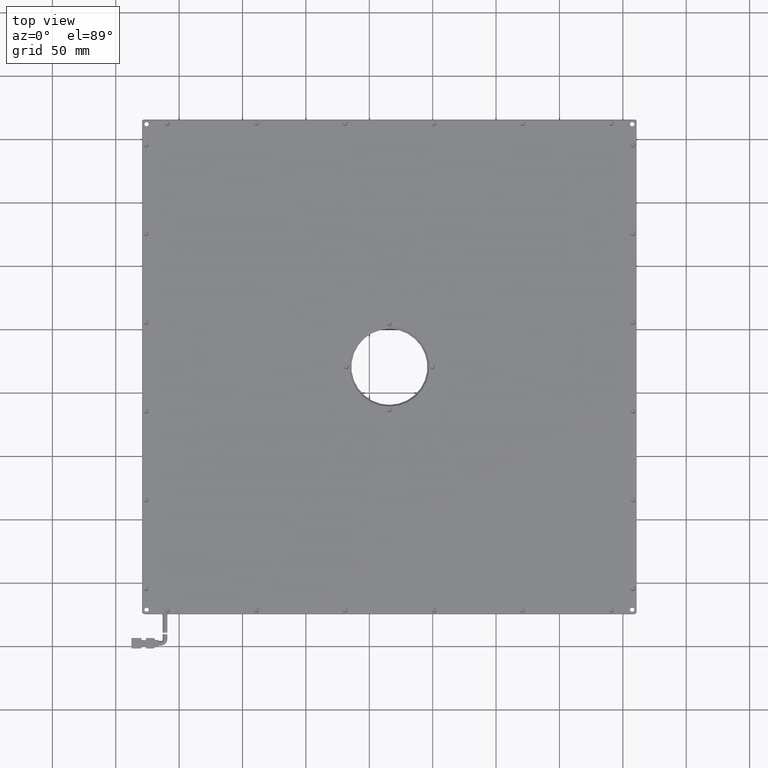
[diagram: clean part render]
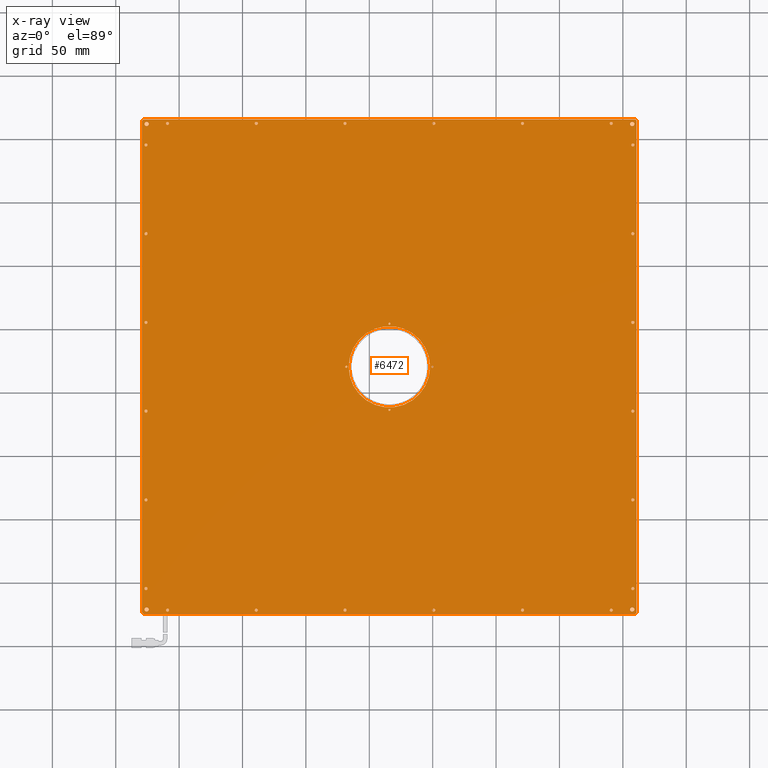
[diagram: x-ray — body ghosted, one internal face saturated and labeled with its STEP entity id]
A machine part, top view, then the same camera in x-ray: the body is ghosted and one INTERNAL B-rep face — a face not visible from any outside direction — is saturated and labeled: STEP entity #6472.
In plain terms, the highlighted planar face has unit normal (0, -0, 1).
Its self-contained STEP definition (entity closure, byte-faithful):
#61 = CARTESIAN_POINT ( 'NONE',  ( 159.0515982014613900, 125.4229729729713400, 4.249999999999998200 ) ) ;
#77 = CARTESIAN_POINT ( 'NONE',  ( -34.14840179853894900, 54.42297297297194100, 4.249999999999998200 ) ) ;
#78 = AXIS2_PLACEMENT_3D ( 'NONE', #1997, #17544, #20684 ) ;
#177 = LINE ( 'NONE', #21537, #12411 ) ;
#246 = AXIS2_PLACEMENT_3D ( 'NONE', #17491, #15616, #3858 ) ;
#249 = EDGE_LOOP ( 'NONE', ( #16632, #19298 ) ) ;
#361 = DIRECTION ( 'NONE',  ( 0.0000000000000000000, 0.0000000000000000000, -1.000000000000000000 ) ) ;
#367 = AXIS2_PLACEMENT_3D ( 'NONE', #5898, #17697, #12739 ) ;
#369 = AXIS2_PLACEMENT_3D ( 'NONE', #4488, #11195, #14552 ) ;
#449 = VERTEX_POINT ( 'NONE', #11733 ) ;
#515 = CARTESIAN_POINT ( 'NONE',  ( 142.0515982014611600, -171.5770270270280100, 4.249999999999998200 ) ) ;
#523 = CARTESIAN_POINT ( 'NONE',  ( -33.34840179853895800, -13.57702702702806600, 4.249999999999998200 ) ) ;
#531 = EDGE_CURVE ( 'NONE', #21410, #13292, #21103, .T. ) ;
#534 = ORIENTED_EDGE ( 'NONE', *, *, #3494, .F. ) ;
#543 = VERTEX_POINT ( 'NONE', #21932 ) ;
#723 = CIRCLE ( 'NONE', #6282, 1.200000000000006600 ) ;
#769 = CARTESIAN_POINT ( 'NONE',  ( 159.8515982014609400, 215.4229729729719300, 4.249999999999996400 ) ) ;
#792 = CARTESIAN_POINT ( 'NONE',  ( -34.14840179853894900, -13.57702702702806600, 4.249999999999998200 ) ) ;
#888 = DIRECTION ( 'NONE',  ( 1.000000000000000000, 0.0000000000000000000, 0.0000000000000000000 ) ) ;
#902 = EDGE_CURVE ( 'NONE', #6751, #4815, #8275, .T. ) ;
#926 = ORIENTED_EDGE ( 'NONE', *, *, #6837, .F. ) ;
#982 = CARTESIAN_POINT ( 'NONE',  ( 2.051598201461002400, 212.4229729729719100, 4.249999999999998200 ) ) ;
#1053 = CIRCLE ( 'NONE', #6989, 1.200000000000006600 ) ;
#1058 = DIRECTION ( 'NONE',  ( 0.7071067811865474600, 0.7071067811865474600, 0.0000000000000000000 ) ) ;
#1069 = EDGE_CURVE ( 'NONE', #20645, #449, #17612, .T. ) ;
#1309 = DIRECTION ( 'NONE',  ( 1.000000000000000000, 0.0000000000000000000, 0.0000000000000000000 ) ) ;
#1311 = CARTESIAN_POINT ( 'NONE',  ( 156.6515982014616100, 195.4229729729713400, 4.249999999999998200 ) ) ;
#1361 = FACE_BOUND ( 'NONE', #18326, .T. ) ;
#1362 = EDGE_CURVE ( 'NONE', #21686, #21589, #20766, .T. ) ;
#1371 = DIRECTION ( 'NONE',  ( 1.000000000000000000, 0.0000000000000000000, 0.0000000000000000000 ) ) ;
#1398 = CARTESIAN_POINT ( 'NONE',  ( -207.9484017985390400, 212.4229729729718800, 4.249999999999998200 ) ) ;
#1439 = ORIENTED_EDGE ( 'NONE', *, *, #14579, .F. ) ;
#1449 = LINE ( 'NONE', #1560, #21170 ) ;
#1526 = CARTESIAN_POINT ( 'NONE',  ( -229.1484017985390800, 215.4229729729718800, 4.249999999999998200 ) ) ;
#1560 = CARTESIAN_POINT ( 'NONE',  ( -228.1484017985391100, -174.5770270270281200, 4.249999999999996400 ) ) ;
#1640 = CARTESIAN_POINT ( 'NONE',  ( 70.85159820146100200, 212.4229729729719100, 4.249999999999998200 ) ) ;
#1644 = FACE_BOUND ( 'NONE', #4980, .T. ) ;
#1650 = ORIENTED_EDGE ( 'NONE', *, *, #20667, .F. ) ;
#1750 = ORIENTED_EDGE ( 'NONE', *, *, #11887, .F. ) ;
#1780 = LINE ( 'NONE', #6922, #18831 ) ;
#1824 = AXIS2_PLACEMENT_3D ( 'NONE', #7271, #15739, #10603 ) ;
#1893 = FACE_BOUND ( 'NONE', #5244, .T. ) ;
#1895 = AXIS2_PLACEMENT_3D ( 'NONE', #13081, #16648, #8065 ) ;
#1901 = CARTESIAN_POINT ( 'NONE',  ( 157.3515982014603800, -171.0770270270286900, 4.249999999999998200 ) ) ;
#1909 = VERTEX_POINT ( 'NONE', #19019 ) ;
#1958 = VERTEX_POINT ( 'NONE', #6036 ) ;
#1997 = CARTESIAN_POINT ( 'NONE',  ( 0.8515982014611136500, -171.5770270270280400, 4.249999999999998200 ) ) ;
#2066 = EDGE_CURVE ( 'NONE', #5786, #7148, #16177, .T. ) ;
#2134 = CARTESIAN_POINT ( 'NONE',  ( 159.0515982014604500, -154.5770270270286900, 4.249999999999998200 ) ) ;
#2153 = LINE ( 'NONE', #16135, #15185 ) ;
#2158 = FACE_BOUND ( 'NONE', #4301, .T. ) ;
#2199 = EDGE_LOOP ( 'NONE', ( #9304, #9311 ) ) ;
#2265 = ORIENTED_EDGE ( 'NONE', *, *, #21154, .F. ) ;
#2280 = CARTESIAN_POINT ( 'NONE',  ( -34.14840179853894900, -13.57702702702806600, 4.249999999999998200 ) ) ;
#2425 = AXIS2_PLACEMENT_3D ( 'NONE', #6157, #19733, #18020 ) ;
#2496 = DIRECTION ( 'NONE',  ( 1.000000000000000000, 0.0000000000000000000, 0.0000000000000000000 ) ) ;
#2585 = ORIENTED_EDGE ( 'NONE', *, *, #16442, .F. ) ;
#2632 = EDGE_LOOP ( 'NONE', ( #19302, #20272 ) ) ;
#2690 = EDGE_CURVE ( 'NONE', #9546, #8335, #11869, .T. ) ;
#2694 = ORIENTED_EDGE ( 'NONE', *, *, #18054, .F. ) ;
#2792 = AXIS2_PLACEMENT_3D ( 'NONE', #21146, #19675, #888 ) ;
#2876 = DIRECTION ( 'NONE',  ( 0.0000000000000000000, 0.0000000000000000000, -1.000000000000000000 ) ) ;
#2927 = CIRCLE ( 'NONE', #2425, 1.749999999999973800 ) ;
#2934 = FACE_BOUND ( 'NONE', #249, .T. ) ;
#2946 = DIRECTION ( 'NONE',  ( 1.000000000000000000, 0.0000000000000000000, 0.0000000000000000000 ) ) ;
#2967 = ORIENTED_EDGE ( 'NONE', *, *, #19731, .F. ) ;
#2989 = CARTESIAN_POINT ( 'NONE',  ( 0.8515982014611136500, -171.5770270270280400, 4.249999999999998200 ) ) ;
#3143 = DIRECTION ( 'NONE',  ( 0.0000000000000000000, 0.0000000000000000000, -1.000000000000000000 ) ) ;
#3149 = CARTESIAN_POINT ( 'NONE',  ( -223.8984017985369800, 211.9229729729738900, 4.249999999999998200 ) ) ;
#3215 = FACE_OUTER_BOUND ( 'NONE', #6700, .T. ) ;
#3297 = VERTEX_POINT ( 'NONE', #20193 ) ;
#3341 = CARTESIAN_POINT ( 'NONE',  ( -69.14840179853889900, -171.5770270270280400, 4.249999999999998200 ) ) ;
#3349 = CIRCLE ( 'NONE', #16789, 1.749999999999973800 ) ;
#3357 = DIRECTION ( 'NONE',  ( 1.000000000000000000, 0.0000000000000000000, 0.0000000000000000000 ) ) ;
#3429 = CIRCLE ( 'NONE', #20016, 1.199999999999999700 ) ;
#3470 = FACE_BOUND ( 'NONE', #16931, .T. ) ;
#3494 = EDGE_CURVE ( 'NONE', #21231, #19180, #2927, .T. ) ;
#3507 = CARTESIAN_POINT ( 'NONE',  ( 159.1015982014609700, 211.9229729729719300, 4.249999999999998200 ) ) ;
#3510 = EDGE_CURVE ( 'NONE', #8948, #13276, #2153, .T. ) ;
#3525 = EDGE_LOOP ( 'NONE', ( #5544, #4429 ) ) ;
#3552 = EDGE_CURVE ( 'NONE', #7312, #16097, #10911, .T. ) ;
#3567 = EDGE_LOOP ( 'NONE', ( #2694, #10925 ) ) ;
#3585 = DIRECTION ( 'NONE',  ( 0.0000000000000000000, 0.0000000000000000000, -1.000000000000000000 ) ) ;
#3596 = DIRECTION ( 'NONE',  ( 0.0000000000000000000, 0.0000000000000000000, -1.000000000000000000 ) ) ;
#3610 = CARTESIAN_POINT ( 'NONE',  ( 157.8515982014616000, 195.4229729729713400, 4.249999999999998200 ) ) ;
#3629 = VERTEX_POINT ( 'NONE', #6232 ) ;
#3662 = VERTEX_POINT ( 'NONE', #18390 ) ;
#3805 = EDGE_CURVE ( 'NONE', #4607, #15935, #1053, .T. ) ;
#3851 = VERTEX_POINT ( 'NONE', #12895 ) ;
#3857 = DIRECTION ( 'NONE',  ( 0.0000000000000000000, 0.0000000000000000000, -1.000000000000000000 ) ) ;
#3858 = DIRECTION ( 'NONE',  ( 1.000000000000000000, 0.0000000000000000000, 0.0000000000000000000 ) ) ;
#3862 = VECTOR ( 'NONE', #5038, 1000.000000000000000 ) ;
#3895 = DIRECTION ( 'NONE',  ( 0.0000000000000000000, 0.0000000000000000000, -1.000000000000000000 ) ) ;
#3912 = EDGE_CURVE ( 'NONE', #5163, #5220, #6105, .T. ) ;
#3920 = VERTEX_POINT ( 'NONE', #18198 ) ;
#3923 = DIRECTION ( 'NONE',  ( 1.000000000000000000, 0.0000000000000000000, 0.0000000000000000000 ) ) ;
#3946 = DIRECTION ( 'NONE',  ( 1.000000000000000000, 0.0000000000000000000, 0.0000000000000000000 ) ) ;
#3974 = CARTESIAN_POINT ( 'NONE',  ( -226.1484017985378300, 125.4229729729738900, 4.249999999999998200 ) ) ;
#3989 = CARTESIAN_POINT ( 'NONE',  ( -226.1484017985407600, -154.5770270270261300, 4.249999999999998200 ) ) ;
#3995 = CARTESIAN_POINT ( 'NONE',  ( -225.6484017985389100, -171.0770270270280700, 4.249999999999998200 ) ) ;
#3999 = FACE_BOUND ( 'NONE', #15229, .T. ) ;
#4014 = VERTEX_POINT ( 'NONE', #15936 ) ;
#4059 = CIRCLE ( 'NONE', #5963, 1.200000000000006600 ) ;
#4069 = AXIS2_PLACEMENT_3D ( 'NONE', #4585, #16510, #19679 ) ;
#4074 = EDGE_LOOP ( 'NONE', ( #2967, #11953 ) ) ;
#4144 = VERTEX_POINT ( 'NONE', #4305 ) ;
#4178 = CIRCLE ( 'NONE', #10119, 0.7999999999999882800 ) ;
#4181 = CIRCLE ( 'NONE', #18422, 1.200000000000006600 ) ;
#4215 = DIRECTION ( 'NONE',  ( 1.000000000000000000, 0.0000000000000000000, 0.0000000000000000000 ) ) ;
#4301 = EDGE_LOOP ( 'NONE', ( #21359, #16907 ) ) ;
#4304 = CARTESIAN_POINT ( 'NONE',  ( -227.3984017985369200, 211.9229729729738900, 4.249999999999998200 ) ) ;
#4305 = CARTESIAN_POINT ( 'NONE',  ( 156.6515982014609000, -14.57702702702867700, 4.249999999999998200 ) ) ;
#4359 = AXIS2_PLACEMENT_3D ( 'NONE', #11439, #14724, #2946 ) ;
#4415 = DIRECTION ( 'NONE',  ( 0.0000000000000000000, 0.0000000000000000000, -1.000000000000000000 ) ) ;
#4429 = ORIENTED_EDGE ( 'NONE', *, *, #7053, .F. ) ;
#4431 = CARTESIAN_POINT ( 'NONE',  ( -68.94840179853895300, 20.42297297297229300, 4.249999999999998200 ) ) ;
#4488 = CARTESIAN_POINT ( 'NONE',  ( 140.8515982014611400, -171.5770270270280100, 4.249999999999998200 ) ) ;
#4506 = CARTESIAN_POINT ( 'NONE',  ( 72.05159820146114700, -171.5770270270280100, 4.249999999999998200 ) ) ;
#4537 = CIRCLE ( 'NONE', #14762, 1.199999999999999700 ) ;
#4559 = ORIENTED_EDGE ( 'NONE', *, *, #14094, .F. ) ;
#4585 = CARTESIAN_POINT ( 'NONE',  ( -229.1484017985390300, 215.4229729729718800, 4.249999999999998200 ) ) ;
#4607 = VERTEX_POINT ( 'NONE', #11429 ) ;
#4615 = DIRECTION ( 'NONE',  ( 1.000000000000000000, 0.0000000000000000000, 0.0000000000000000000 ) ) ;
#4634 = DIRECTION ( 'NONE',  ( 0.0000000000000000000, 0.0000000000000000000, -1.000000000000000000 ) ) ;
#4653 = CARTESIAN_POINT ( 'NONE',  ( 157.8515982014611400, 55.42297297297133700, 4.249999999999998200 ) ) ;
#4686 = DIRECTION ( 'NONE',  ( 1.000000000000000000, 0.0000000000000000000, 0.0000000000000000000 ) ) ;
#4700 = ORIENTED_EDGE ( 'NONE', *, *, #11695, .F. ) ;
#4728 = CARTESIAN_POINT ( 'NONE',  ( -224.9484017985371100, 195.4229729729738900, 4.249999999999998200 ) ) ;
#4800 = CARTESIAN_POINT ( 'NONE',  ( -210.3484017985389600, -171.5770270270280700, 4.249999999999998200 ) ) ;
#4815 = VERTEX_POINT ( 'NONE', #1398 ) ;
#4857 = CARTESIAN_POINT ( 'NONE',  ( -229.1484017985390300, -173.5770270270282100, 4.249999999999996400 ) ) ;
#4888 = VERTEX_POINT ( 'NONE', #8130 ) ;
#4891 = DIRECTION ( 'NONE',  ( 1.000000000000000000, 0.0000000000000000000, 0.0000000000000000000 ) ) ;
#4924 = DIRECTION ( 'NONE',  ( 0.0000000000000000000, 1.000000000000000000, 0.0000000000000000000 ) ) ;
#4968 = CIRCLE ( 'NONE', #12286, 1.200000000000006600 ) ;
#4971 = CARTESIAN_POINT ( 'NONE',  ( -226.1484017985407600, -154.5770270270261300, 4.249999999999998200 ) ) ;
#4980 = EDGE_LOOP ( 'NONE', ( #1750, #534 ) ) ;
#5015 = ORIENTED_EDGE ( 'NONE', *, *, #21319, .F. ) ;
#5028 = DIRECTION ( 'NONE',  ( 0.0000000000000000000, 0.0000000000000000000, -1.000000000000000000 ) ) ;
#5038 = DIRECTION ( 'NONE',  ( 1.000000000000000000, 0.0000000000000000000, -0.0000000000000000000 ) ) ;
#5077 = CARTESIAN_POINT ( 'NONE',  ( -226.1484017985400200, -84.57702702702613400, 4.249999999999998200 ) ) ;
#5143 = CARTESIAN_POINT ( 'NONE',  ( 157.8515982014609200, -14.57702702702867700, 4.249999999999998200 ) ) ;
#5145 = DIRECTION ( 'NONE',  ( 1.000000000000000000, 0.0000000000000000000, 0.0000000000000000000 ) ) ;
#5163 = VERTEX_POINT ( 'NONE', #8821 ) ;
#5220 = VERTEX_POINT ( 'NONE', #17618 ) ;
#5225 = CARTESIAN_POINT ( 'NONE',  ( -207.9484017985389200, -171.5770270270280700, 4.249999999999998200 ) ) ;
#5239 = AXIS2_PLACEMENT_3D ( 'NONE', #15450, #13621, #10387 ) ;
#5244 = EDGE_LOOP ( 'NONE', ( #9621, #18181 ) ) ;
#5248 = EDGE_LOOP ( 'NONE', ( #4700, #10936 ) ) ;
#5332 = CIRCLE ( 'NONE', #16653, 1.200000000000006600 ) ;
#5337 = CARTESIAN_POINT ( 'NONE',  ( 157.8515982014609200, -14.57702702702867700, 4.249999999999998200 ) ) ;
#5429 = VERTEX_POINT ( 'NONE', #14889 ) ;
#5435 = AXIS2_PLACEMENT_3D ( 'NONE', #11141, #14423, #4215 ) ;
#5444 = ORIENTED_EDGE ( 'NONE', *, *, #16532, .F. ) ;
#5475 = CIRCLE ( 'NONE', #78, 1.199999999999999700 ) ;
#5477 = CARTESIAN_POINT ( 'NONE',  ( -226.1484017985392800, -14.57702702702612300, 4.249999999999998200 ) ) ;
#5507 = DIRECTION ( 'NONE',  ( 1.000000000000000000, 0.0000000000000000000, 0.0000000000000000000 ) ) ;
#5528 = DIRECTION ( 'NONE',  ( 0.0000000000000000000, 0.0000000000000000000, -1.000000000000000000 ) ) ;
#5544 = ORIENTED_EDGE ( 'NONE', *, *, #6891, .F. ) ;
#5650 = EDGE_CURVE ( 'NONE', #4014, #3662, #11605, .T. ) ;
#5681 = AXIS2_PLACEMENT_3D ( 'NONE', #7913, #13228, #13008 ) ;
#5784 = CARTESIAN_POINT ( 'NONE',  ( 69.65159820146114100, -171.5770270270280100, 4.249999999999998200 ) ) ;
#5786 = VERTEX_POINT ( 'NONE', #10866 ) ;
#5868 = DIRECTION ( 'NONE',  ( -0.7071067811865474600, -0.7071067811865474600, 0.0000000000000000000 ) ) ;
#5876 = FACE_BOUND ( 'NONE', #11085, .T. ) ;
#5898 = CARTESIAN_POINT ( 'NONE',  ( -34.14840179853894900, 54.42297297297194100, 4.249999999999998200 ) ) ;
#5911 = CIRCLE ( 'NONE', #367, 0.7999999999999882800 ) ;
#5913 = CARTESIAN_POINT ( 'NONE',  ( 157.8515982014604300, -154.5770270270286900, 4.249999999999998200 ) ) ;
#5963 = AXIS2_PLACEMENT_3D ( 'NONE', #3341, #13638, #5145 ) ;
#5970 = EDGE_CURVE ( 'NONE', #20991, #4888, #15284, .T. ) ;
#6005 = AXIS2_PLACEMENT_3D ( 'NONE', #9600, #11189, #16248 ) ;
#6036 = CARTESIAN_POINT ( 'NONE',  ( -228.1484017985389100, 215.4229729729718800, 4.249999999999996400 ) ) ;
#6051 = AXIS2_PLACEMENT_3D ( 'NONE', #14664, #19830, #21606 ) ;
#6094 = AXIS2_PLACEMENT_3D ( 'NONE', #10510, #5528, #7669 ) ;
#6105 = CIRCLE ( 'NONE', #11127, 1.200000000000006600 ) ;
#6145 = ORIENTED_EDGE ( 'NONE', *, *, #18677, .F. ) ;
#6150 = FACE_BOUND ( 'NONE', #15549, .T. ) ;
#6157 = CARTESIAN_POINT ( 'NONE',  ( 157.3515982014610000, 211.9229729729719300, 4.249999999999998200 ) ) ;
#6158 = CARTESIAN_POINT ( 'NONE',  ( 72.05159820146100500, 212.4229729729719100, 4.249999999999998200 ) ) ;
#6167 = EDGE_CURVE ( 'NONE', #15807, #1958, #6770, .T. ) ;
#6169 = VERTEX_POINT ( 'NONE', #18266 ) ;
#6173 = EDGE_CURVE ( 'NONE', #21589, #21686, #7738, .T. ) ;
#6200 = DIRECTION ( 'NONE',  ( 0.0000000000000000000, 0.0000000000000000000, -1.000000000000000000 ) ) ;
#6205 = ORIENTED_EDGE ( 'NONE', *, *, #13790, .F. ) ;
#6219 = ORIENTED_EDGE ( 'NONE', *, *, #6167, .T. ) ;
#6232 = CARTESIAN_POINT ( 'NONE',  ( -70.34840179853901500, 212.4229729729719100, 4.249999999999998200 ) ) ;
#6282 = AXIS2_PLACEMENT_3D ( 'NONE', #7063, #17044, #10179 ) ;
#6308 = VERTEX_POINT ( 'NONE', #8986 ) ;
#6341 = EDGE_CURVE ( 'NONE', #9970, #19708, #16543, .T. ) ;
#6349 = CARTESIAN_POINT ( 'NONE',  ( -225.6484017985389100, -171.0770270270280700, 4.249999999999998200 ) ) ;
#6362 = CIRCLE ( 'NONE', #16190, 1.200000000000006600 ) ;
#6384 = CIRCLE ( 'NONE', #5239, 1.200000000000006600 ) ;
#6390 = DIRECTION ( 'NONE',  ( 1.000000000000000000, 0.0000000000000000000, 0.0000000000000000000 ) ) ;
#6411 = FACE_BOUND ( 'NONE', #9041, .T. ) ;
#6424 = EDGE_LOOP ( 'NONE', ( #17297, #19844 ) ) ;
#6427 = DIRECTION ( 'NONE',  ( 1.000000000000000000, 0.0000000000000000000, 0.0000000000000000000 ) ) ;
#6428 = AXIS2_PLACEMENT_3D ( 'NONE', #3989, #18779, #19149 ) ;
#6472 = ADVANCED_FACE ( 'NONE', ( #3215, #5876, #6940, #17599, #12533, #15452, #10920, #13622, #10662, #6683, #6411, #14142, #1893, #2934, #14928, #6150, #2158, #15727, #1361, #21350, #3470, #20815, #11760, #11205, #15195, #1644, #13072, #19235, #14676, #10129, #8515, #3999, #21612, #17064 ), #14800, .F. ) ;
#6483 = VERTEX_POINT ( 'NONE', #4304 ) ;
#6652 = CARTESIAN_POINT ( 'NONE',  ( 156.6515982014613800, 125.4229729729713400, 4.249999999999998200 ) ) ;
#6683 = FACE_BOUND ( 'NONE', #20214, .T. ) ;
#6700 = EDGE_LOOP ( 'NONE', ( #15294, #10841, #6219, #12573, #7654, #8979, #9526, #17012 ) ) ;
#6701 = CIRCLE ( 'NONE', #6428, 1.200000000000006600 ) ;
#6713 = AXIS2_PLACEMENT_3D ( 'NONE', #5337, #12252, #7034 ) ;
#6723 = EDGE_CURVE ( 'NONE', #3920, #19420, #6384, .T. ) ;
#6751 = VERTEX_POINT ( 'NONE', #10162 ) ;
#6770 = LINE ( 'NONE', #11237, #19852 ) ;
#6773 = CARTESIAN_POINT ( 'NONE',  ( -137.9484017985389000, -171.5770270270280400, 4.249999999999998200 ) ) ;
#6785 = ORIENTED_EDGE ( 'NONE', *, *, #3912, .F. ) ;
#6837 = EDGE_CURVE ( 'NONE', #8335, #9546, #6919, .T. ) ;
#6891 = EDGE_CURVE ( 'NONE', #16327, #11499, #8755, .T. ) ;
#6893 = DIRECTION ( 'NONE',  ( 0.0000000000000000000, 0.0000000000000000000, -1.000000000000000000 ) ) ;
#6919 = CIRCLE ( 'NONE', #1824, 1.200000000000006600 ) ;
#6922 = CARTESIAN_POINT ( 'NONE',  ( -229.1484017985390300, 215.4229729729719300, 4.249999999999998200 ) ) ;
#6940 = FACE_BOUND ( 'NONE', #3567, .T. ) ;
#6967 = AXIS2_PLACEMENT_3D ( 'NONE', #5913, #17839, #14256 ) ;
#6989 = AXIS2_PLACEMENT_3D ( 'NONE', #21694, #4415, #4615 ) ;
#7008 = EDGE_LOOP ( 'NONE', ( #17946, #16913 ) ) ;
#7017 = DIRECTION ( 'NONE',  ( 1.000000000000000000, 0.0000000000000000000, 0.0000000000000000000 ) ) ;
#7031 = CARTESIAN_POINT ( 'NONE',  ( -0.3484017985389970000, 212.4229729729719100, 4.249999999999998200 ) ) ;
#7034 = DIRECTION ( 'NONE',  ( 1.000000000000000000, 0.0000000000000000000, 0.0000000000000000000 ) ) ;
#7053 = EDGE_CURVE ( 'NONE', #11499, #16327, #6362, .T. ) ;
#7063 = CARTESIAN_POINT ( 'NONE',  ( -209.1484017985390600, 212.4229729729718800, 4.249999999999998200 ) ) ;
#7074 = AXIS2_PLACEMENT_3D ( 'NONE', #20278, #13345, #4686 ) ;
#7083 = EDGE_CURVE ( 'NONE', #14467, #21937, #22086, .T. ) ;
#7087 = DIRECTION ( 'NONE',  ( 1.000000000000000000, 0.0000000000000000000, 0.0000000000000000000 ) ) ;
#7148 = VERTEX_POINT ( 'NONE', #4431 ) ;
#7227 = ORIENTED_EDGE ( 'NONE', *, *, #13060, .F. ) ;
#7271 = CARTESIAN_POINT ( 'NONE',  ( 157.8515982014606600, -84.57702702702867700, 4.249999999999998200 ) ) ;
#7312 = VERTEX_POINT ( 'NONE', #6652 ) ;
#7323 = VERTEX_POINT ( 'NONE', #17289 ) ;
#7366 = DIRECTION ( 'NONE',  ( 1.000000000000000000, 0.0000000000000000000, 0.0000000000000000000 ) ) ;
#7390 = CIRCLE ( 'NONE', #2792, 32.10000000000000100 ) ;
#7399 = CARTESIAN_POINT ( 'NONE',  ( -0.9484017985389310300, 20.42297297297182000, 4.249999999999998200 ) ) ;
#7403 = EDGE_CURVE ( 'NONE', #21797, #13343, #15647, .T. ) ;
#7498 = DIRECTION ( 'NONE',  ( 0.7071067811865672200, -0.7071067811865279200, 0.0000000000000000000 ) ) ;
#7549 = EDGE_LOOP ( 'NONE', ( #15065, #926 ) ) ;
#7600 = CIRCLE ( 'NONE', #18971, 1.200000000000006600 ) ;
#7617 = CARTESIAN_POINT ( 'NONE',  ( 140.8515982014611400, -171.5770270270280100, 4.249999999999998200 ) ) ;
#7654 = ORIENTED_EDGE ( 'NONE', *, *, #5970, .T. ) ;
#7669 = DIRECTION ( 'NONE',  ( 1.000000000000000000, 0.0000000000000000000, 0.0000000000000000000 ) ) ;
#7738 = CIRCLE ( 'NONE', #6051, 1.200000000000006600 ) ;
#7751 = EDGE_CURVE ( 'NONE', #8948, #4888, #177, .T. ) ;
#7817 = EDGE_CURVE ( 'NONE', #5220, #5163, #17743, .T. ) ;
#7830 = AXIS2_PLACEMENT_3D ( 'NONE', #17143, #3585, #3946 ) ;
#7832 = CARTESIAN_POINT ( 'NONE',  ( 157.3515982014610000, 211.9229729729719300, 4.249999999999998200 ) ) ;
#7851 = EDGE_CURVE ( 'NONE', #20991, #1958, #1780, .T. ) ;
#7891 = VERTEX_POINT ( 'NONE', #15618 ) ;
#7913 = CARTESIAN_POINT ( 'NONE',  ( 157.8515982014606600, -84.57702702702867700, 4.249999999999998200 ) ) ;
#7939 = EDGE_CURVE ( 'NONE', #6308, #20301, #7600, .T. ) ;
#7948 = EDGE_CURVE ( 'NONE', #18862, #9206, #10784, .T. ) ;
#8003 = CARTESIAN_POINT ( 'NONE',  ( -209.1484017985390600, 212.4229729729718800, 4.249999999999998200 ) ) ;
#8065 = DIRECTION ( 'NONE',  ( 1.000000000000000000, 0.0000000000000000000, 0.0000000000000000000 ) ) ;
#8130 = CARTESIAN_POINT ( 'NONE',  ( 160.8515982014610000, 214.4229729729719300, 4.249999999999996400 ) ) ;
#8257 = CARTESIAN_POINT ( 'NONE',  ( 157.3515982014603800, -171.0770270270286900, 4.249999999999998200 ) ) ;
#8262 = CARTESIAN_POINT ( 'NONE',  ( -0.1484017985389427000, 20.42297297297182000, 4.249999999999998200 ) ) ;
#8273 = CARTESIAN_POINT ( 'NONE',  ( 70.85159820146100200, 212.4229729729719100, 4.249999999999998200 ) ) ;
#8275 = CIRCLE ( 'NONE', #10633, 1.200000000000006600 ) ;
#8289 = EDGE_CURVE ( 'NONE', #7891, #19163, #1449, .T. ) ;
#8335 = VERTEX_POINT ( 'NONE', #21952 ) ;
#8425 = CARTESIAN_POINT ( 'NONE',  ( -229.1484017985390300, -174.5770270270281200, 4.249999999999998200 ) ) ;
#8428 = DIRECTION ( 'NONE',  ( 0.0000000000000000000, 0.0000000000000000000, -1.000000000000000000 ) ) ;
#8431 = AXIS2_PLACEMENT_3D ( 'NONE', #8706, #12234, #8851 ) ;
#8455 = DIRECTION ( 'NONE',  ( 1.000000000000000000, 0.0000000000000000000, 0.0000000000000000000 ) ) ;
#8515 = FACE_BOUND ( 'NONE', #11900, .T. ) ;
#8526 = DIRECTION ( 'NONE',  ( 0.0000000000000000000, 0.0000000000000000000, -1.000000000000000000 ) ) ;
#8529 = CARTESIAN_POINT ( 'NONE',  ( 159.0515982014606800, -84.57702702702867700, 4.249999999999998200 ) ) ;
#8530 = CARTESIAN_POINT ( 'NONE',  ( -139.1484017985389100, -171.5770270270280400, 4.249999999999998200 ) ) ;
#8576 = DIRECTION ( 'NONE',  ( 1.000000000000000000, 0.0000000000000000000, 0.0000000000000000000 ) ) ;
#8584 = DIRECTION ( 'NONE',  ( 0.0000000000000000000, 0.0000000000000000000, -1.000000000000000000 ) ) ;
#8655 = EDGE_CURVE ( 'NONE', #20199, #6169, #11537, .T. ) ;
#8656 = DIRECTION ( 'NONE',  ( 1.000000000000000000, 0.0000000000000000000, 0.0000000000000000000 ) ) ;
#8665 = CARTESIAN_POINT ( 'NONE',  ( 157.8515982014611400, 55.42297297297133700, 4.249999999999998200 ) ) ;
#8697 = ORIENTED_EDGE ( 'NONE', *, *, #10305, .F. ) ;
#8706 = CARTESIAN_POINT ( 'NONE',  ( -226.1484017985385700, 55.42297297297388100, 4.249999999999998200 ) ) ;
#8728 = CARTESIAN_POINT ( 'NONE',  ( 159.0515982014616200, 195.4229729729713400, 4.249999999999998200 ) ) ;
#8755 = CIRCLE ( 'NONE', #16636, 1.200000000000006600 ) ;
#8773 = DIRECTION ( 'NONE',  ( 0.0000000000000000000, 0.0000000000000000000, -1.000000000000000000 ) ) ;
#8774 = CARTESIAN_POINT ( 'NONE',  ( -33.34840179853895800, 54.42297297297194100, 4.249999999999998200 ) ) ;
#8821 = CARTESIAN_POINT ( 'NONE',  ( -227.3484017985400100, -84.57702702702613400, 4.249999999999998200 ) ) ;
#8851 = DIRECTION ( 'NONE',  ( 1.000000000000000000, 0.0000000000000000000, 0.0000000000000000000 ) ) ;
#8884 = DIRECTION ( 'NONE',  ( 0.0000000000000000000, 0.0000000000000000000, -1.000000000000000000 ) ) ;
#8948 = VERTEX_POINT ( 'NONE', #21632 ) ;
#8963 = CIRCLE ( 'NONE', #14400, 0.7999999999999951600 ) ;
#8979 = ORIENTED_EDGE ( 'NONE', *, *, #7751, .F. ) ;
#8986 = CARTESIAN_POINT ( 'NONE',  ( -67.94840179853889600, -171.5770270270280400, 4.249999999999998200 ) ) ;
#8990 = AXIS2_PLACEMENT_3D ( 'NONE', #18679, #8428, #21873 ) ;
#9041 = EDGE_LOOP ( 'NONE', ( #5015, #19620 ) ) ;
#9206 = VERTEX_POINT ( 'NONE', #14158 ) ;
#9213 = CIRCLE ( 'NONE', #18810, 1.200000000000006600 ) ;
#9252 = DIRECTION ( 'NONE',  ( 1.000000000000000000, 0.0000000000000000000, 0.0000000000000000000 ) ) ;
#9258 = DIRECTION ( 'NONE',  ( 0.0000000000000000000, 0.0000000000000000000, -1.000000000000000000 ) ) ;
#9304 = ORIENTED_EDGE ( 'NONE', *, *, #12888, .F. ) ;
#9311 = ORIENTED_EDGE ( 'NONE', *, *, #5650, .F. ) ;
#9350 = ORIENTED_EDGE ( 'NONE', *, *, #6723, .F. ) ;
#9379 = CARTESIAN_POINT ( 'NONE',  ( 0.6515982014610456300, 20.42297297297182000, 4.249999999999998200 ) ) ;
#9440 = CARTESIAN_POINT ( 'NONE',  ( -0.3484017985388859800, -171.5770270270280400, 4.249999999999998200 ) ) ;
#9485 = EDGE_LOOP ( 'NONE', ( #1439, #2265 ) ) ;
#9526 = ORIENTED_EDGE ( 'NONE', *, *, #3510, .T. ) ;
#9529 = VERTEX_POINT ( 'NONE', #18790 ) ;
#9542 = AXIS2_PLACEMENT_3D ( 'NONE', #77, #14132, #3923 ) ;
#9546 = VERTEX_POINT ( 'NONE', #8529 ) ;
#9600 = CARTESIAN_POINT ( 'NONE',  ( -34.14840179853894900, 20.42297297297193700, 4.249999999999998200 ) ) ;
#9621 = ORIENTED_EDGE ( 'NONE', *, *, #8655, .F. ) ;
#9796 = DIRECTION ( 'NONE',  ( 0.0000000000000000000, 0.0000000000000000000, -1.000000000000000000 ) ) ;
#9930 = DIRECTION ( 'NONE',  ( 0.0000000000000000000, 0.0000000000000000000, -1.000000000000000000 ) ) ;
#9954 = DIRECTION ( 'NONE',  ( 1.000000000000000000, 0.0000000000000000000, 0.0000000000000000000 ) ) ;
#9970 = VERTEX_POINT ( 'NONE', #4800 ) ;
#10051 = DIRECTION ( 'NONE',  ( 0.0000000000000000000, 0.0000000000000000000, -1.000000000000000000 ) ) ;
#10060 = AXIS2_PLACEMENT_3D ( 'NONE', #19023, #8773, #20654 ) ;
#10080 = CARTESIAN_POINT ( 'NONE',  ( 2.051598201461113400, -171.5770270270280400, 4.249999999999998200 ) ) ;
#10085 = AXIS2_PLACEMENT_3D ( 'NONE', #8530, #13853, #13925 ) ;
#10114 = ORIENTED_EDGE ( 'NONE', *, *, #21322, .F. ) ;
#10119 = AXIS2_PLACEMENT_3D ( 'NONE', #8262, #11646, #1309 ) ;
#10129 = FACE_BOUND ( 'NONE', #17120, .T. ) ;
#10154 = DIRECTION ( 'NONE',  ( 1.000000000000000000, 0.0000000000000000000, 0.0000000000000000000 ) ) ;
#10162 = CARTESIAN_POINT ( 'NONE',  ( -210.3484017985390700, 212.4229729729718800, 4.249999999999998200 ) ) ;
#10179 = DIRECTION ( 'NONE',  ( 1.000000000000000000, 0.0000000000000000000, 0.0000000000000000000 ) ) ;
#10305 = EDGE_CURVE ( 'NONE', #10766, #21647, #5911, .T. ) ;
#10308 = DIRECTION ( 'NONE',  ( 0.0000000000000000000, 0.0000000000000000000, -1.000000000000000000 ) ) ;
#10374 = DIRECTION ( 'NONE',  ( 0.0000000000000000000, 0.0000000000000000000, -1.000000000000000000 ) ) ;
#10387 = DIRECTION ( 'NONE',  ( 1.000000000000000000, 0.0000000000000000000, 0.0000000000000000000 ) ) ;
#10426 = CARTESIAN_POINT ( 'NONE',  ( -68.14840179853895600, 20.42297297297229300, 4.249999999999998200 ) ) ;
#10493 = EDGE_CURVE ( 'NONE', #5429, #15340, #14953, .T. ) ;
#10501 = EDGE_CURVE ( 'NONE', #13376, #15261, #4537, .T. ) ;
#10510 = CARTESIAN_POINT ( 'NONE',  ( -226.1484017985392800, -14.57702702702612300, 4.249999999999998200 ) ) ;
#10562 = EDGE_CURVE ( 'NONE', #15807, #19163, #18695, .T. ) ;
#10603 = DIRECTION ( 'NONE',  ( 1.000000000000000000, 0.0000000000000000000, 0.0000000000000000000 ) ) ;
#10633 = AXIS2_PLACEMENT_3D ( 'NONE', #8003, #18405, #6390 ) ;
#10638 = EDGE_LOOP ( 'NONE', ( #9350, #12760 ) ) ;
#10662 = FACE_BOUND ( 'NONE', #14751, .T. ) ;
#10766 = VERTEX_POINT ( 'NONE', #8774 ) ;
#10777 = CARTESIAN_POINT ( 'NONE',  ( -209.1484017985389400, -171.5770270270280700, 4.249999999999998200 ) ) ;
#10781 = CARTESIAN_POINT ( 'NONE',  ( -69.14840179853889900, -171.5770270270280400, 4.249999999999998200 ) ) ;
#10784 = CIRCLE ( 'NONE', #17366, 1.749999999999973800 ) ;
#10834 = ORIENTED_EDGE ( 'NONE', *, *, #20882, .F. ) ;
#10835 = AXIS2_PLACEMENT_3D ( 'NONE', #5143, #8526, #8455 ) ;
#10841 = ORIENTED_EDGE ( 'NONE', *, *, #10562, .F. ) ;
#10851 = AXIS2_PLACEMENT_3D ( 'NONE', #15589, #10308, #8656 ) ;
#10866 = CARTESIAN_POINT ( 'NONE',  ( -67.34840179853895800, 20.42297297297229300, 4.249999999999998200 ) ) ;
#10888 = EDGE_LOOP ( 'NONE', ( #21563, #6205 ) ) ;
#10896 = AXIS2_PLACEMENT_3D ( 'NONE', #16479, #4634, #16335 ) ;
#10911 = CIRCLE ( 'NONE', #5435, 1.200000000000006600 ) ;
#10920 = FACE_BOUND ( 'NONE', #10638, .T. ) ;
#10922 = VECTOR ( 'NONE', #18204, 1000.000000000000000 ) ;
#10925 = ORIENTED_EDGE ( 'NONE', *, *, #20852, .F. ) ;
#10928 = CARTESIAN_POINT ( 'NONE',  ( -68.14840179853895600, 20.42297297297229300, 4.249999999999998200 ) ) ;
#10936 = ORIENTED_EDGE ( 'NONE', *, *, #17593, .F. ) ;
#11017 = EDGE_CURVE ( 'NONE', #19708, #9970, #13857, .T. ) ;
#11085 = EDGE_LOOP ( 'NONE', ( #10114, #19869 ) ) ;
#11097 = CARTESIAN_POINT ( 'NONE',  ( 139.6515982014610400, 212.4229729729719300, 4.249999999999998200 ) ) ;
#11111 = CARTESIAN_POINT ( 'NONE',  ( 0.8515982014610026200, 212.4229729729719100, 4.249999999999998200 ) ) ;
#11127 = AXIS2_PLACEMENT_3D ( 'NONE', #21773, #11550, #1371 ) ;
#11141 = CARTESIAN_POINT ( 'NONE',  ( 157.8515982014613700, 125.4229729729713400, 4.249999999999998200 ) ) ;
#11184 = EDGE_CURVE ( 'NONE', #6169, #20199, #14607, .T. ) ;
#11189 = DIRECTION ( 'NONE',  ( 0.0000000000000000000, 0.0000000000000000000, -1.000000000000000000 ) ) ;
#11195 = DIRECTION ( 'NONE',  ( 0.0000000000000000000, 0.0000000000000000000, -1.000000000000000000 ) ) ;
#11205 = FACE_BOUND ( 'NONE', #3525, .T. ) ;
#11216 = VERTEX_POINT ( 'NONE', #523 ) ;
#11237 = CARTESIAN_POINT ( 'NONE',  ( -229.1484017985390300, 214.4229729729717600, 4.249999999999996400 ) ) ;
#11320 = LINE ( 'NONE', #8425, #3862 ) ;
#11353 = EDGE_CURVE ( 'NONE', #9529, #20232, #7390, .T. ) ;
#11420 = CIRCLE ( 'NONE', #6005, 32.10000000000000100 ) ;
#11429 = CARTESIAN_POINT ( 'NONE',  ( -227.3484017985371400, 195.4229729729738900, 4.249999999999998200 ) ) ;
#11439 = CARTESIAN_POINT ( 'NONE',  ( -225.6484017985369500, 211.9229729729738900, 4.249999999999998200 ) ) ;
#11443 = EDGE_CURVE ( 'NONE', #6483, #12159, #18870, .T. ) ;
#11499 = VERTEX_POINT ( 'NONE', #13538 ) ;
#11534 = DIRECTION ( 'NONE',  ( 1.000000000000000000, 0.0000000000000000000, 0.0000000000000000000 ) ) ;
#11537 = CIRCLE ( 'NONE', #6967, 1.200000000000006600 ) ;
#11549 = ORIENTED_EDGE ( 'NONE', *, *, #13813, .F. ) ;
#11550 = DIRECTION ( 'NONE',  ( 0.0000000000000000000, 0.0000000000000000000, -1.000000000000000000 ) ) ;
#11581 = AXIS2_PLACEMENT_3D ( 'NONE', #13583, #15190, #3357 ) ;
#11593 = CARTESIAN_POINT ( 'NONE',  ( 155.6015982014604000, -171.0770270270286900, 4.249999999999998200 ) ) ;
#11605 = CIRCLE ( 'NONE', #8431, 1.200000000000006600 ) ;
#11643 = DIRECTION ( 'NONE',  ( 0.0000000000000000000, 0.0000000000000000000, -1.000000000000000000 ) ) ;
#11646 = DIRECTION ( 'NONE',  ( 0.0000000000000000000, 0.0000000000000000000, -1.000000000000000000 ) ) ;
#11695 = EDGE_CURVE ( 'NONE', #13550, #12049, #9213, .T. ) ;
#11733 = CARTESIAN_POINT ( 'NONE',  ( 159.0515982014611300, 55.42297297297133700, 4.249999999999998200 ) ) ;
#11742 = CARTESIAN_POINT ( 'NONE',  ( 159.1015982014603500, -171.0770270270286900, 4.249999999999998200 ) ) ;
#11760 = FACE_BOUND ( 'NONE', #2199, .T. ) ;
#11799 = AXIS2_PLACEMENT_3D ( 'NONE', #8273, #5028, #16933 ) ;
#11869 = CIRCLE ( 'NONE', #5681, 1.200000000000006600 ) ;
#11887 = EDGE_CURVE ( 'NONE', #19180, #21231, #3349, .T. ) ;
#11900 = EDGE_LOOP ( 'NONE', ( #8697, #7227 ) ) ;
#11952 = AXIS2_PLACEMENT_3D ( 'NONE', #8257, #10051, #18809 ) ;
#11953 = ORIENTED_EDGE ( 'NONE', *, *, #10493, .F. ) ;
#12023 = CIRCLE ( 'NONE', #10085, 1.200000000000006600 ) ;
#12049 = VERTEX_POINT ( 'NONE', #1311 ) ;
#12123 = ORIENTED_EDGE ( 'NONE', *, *, #18758, .F. ) ;
#12159 = VERTEX_POINT ( 'NONE', #3149 ) ;
#12234 = DIRECTION ( 'NONE',  ( 0.0000000000000000000, 0.0000000000000000000, -1.000000000000000000 ) ) ;
#12252 = DIRECTION ( 'NONE',  ( 0.0000000000000000000, 0.0000000000000000000, -1.000000000000000000 ) ) ;
#12286 = AXIS2_PLACEMENT_3D ( 'NONE', #13043, #12881, #14741 ) ;
#12349 = DIRECTION ( 'NONE',  ( 0.0000000000000000000, 0.0000000000000000000, -1.000000000000000000 ) ) ;
#12411 = VECTOR ( 'NONE', #4924, 1000.000000000000000 ) ;
#12479 = AXIS2_PLACEMENT_3D ( 'NONE', #16618, #11643, #13433 ) ;
#12533 = FACE_BOUND ( 'NONE', #10888, .T. ) ;
#12573 = ORIENTED_EDGE ( 'NONE', *, *, #7851, .F. ) ;
#12713 = CARTESIAN_POINT ( 'NONE',  ( 159.8515982014609400, 215.4229729729719300, 4.249999999999996400 ) ) ;
#12739 = DIRECTION ( 'NONE',  ( 1.000000000000000000, 0.0000000000000000000, 0.0000000000000000000 ) ) ;
#12760 = ORIENTED_EDGE ( 'NONE', *, *, #13523, .F. ) ;
#12770 = CIRCLE ( 'NONE', #10851, 1.200000000000006600 ) ;
#12793 = EDGE_CURVE ( 'NONE', #20301, #6308, #4059, .T. ) ;
#12848 = CIRCLE ( 'NONE', #17368, 1.200000000000006600 ) ;
#12858 = AXIS2_PLACEMENT_3D ( 'NONE', #10928, #14371, #21305 ) ;
#12881 = DIRECTION ( 'NONE',  ( 0.0000000000000000000, 0.0000000000000000000, -1.000000000000000000 ) ) ;
#12888 = EDGE_CURVE ( 'NONE', #3662, #4014, #12848, .T. ) ;
#12895 = CARTESIAN_POINT ( 'NONE',  ( 159.0515982014609300, -14.57702702702867700, 4.249999999999998200 ) ) ;
#12928 = CIRCLE ( 'NONE', #15565, 1.200000000000006600 ) ;
#13008 = DIRECTION ( 'NONE',  ( 1.000000000000000000, 0.0000000000000000000, 0.0000000000000000000 ) ) ;
#13043 = CARTESIAN_POINT ( 'NONE',  ( -69.14840179853901200, 212.4229729729719100, 4.249999999999998200 ) ) ;
#13060 = EDGE_CURVE ( 'NONE', #21647, #10766, #14691, .T. ) ;
#13072 = FACE_BOUND ( 'NONE', #19804, .T. ) ;
#13081 = CARTESIAN_POINT ( 'NONE',  ( -225.6484017985369500, 211.9229729729738900, 4.249999999999998200 ) ) ;
#13090 = EDGE_CURVE ( 'NONE', #20131, #543, #6701, .T. ) ;
#13182 = CARTESIAN_POINT ( 'NONE',  ( -137.9484017985390100, 212.4229729729718800, 4.249999999999998200 ) ) ;
#13228 = DIRECTION ( 'NONE',  ( 0.0000000000000000000, 0.0000000000000000000, -1.000000000000000000 ) ) ;
#13235 = DIRECTION ( 'NONE',  ( 1.000000000000000000, 0.0000000000000000000, 0.0000000000000000000 ) ) ;
#13274 = EDGE_CURVE ( 'NONE', #449, #20645, #20276, .T. ) ;
#13276 = VERTEX_POINT ( 'NONE', #16426 ) ;
#13283 = CIRCLE ( 'NONE', #18121, 1.200000000000006600 ) ;
#13292 = VERTEX_POINT ( 'NONE', #6158 ) ;
#13343 = VERTEX_POINT ( 'NONE', #11593 ) ;
#13345 = DIRECTION ( 'NONE',  ( 0.0000000000000000000, 0.0000000000000000000, -1.000000000000000000 ) ) ;
#13376 = VERTEX_POINT ( 'NONE', #10080 ) ;
#13390 = EDGE_CURVE ( 'NONE', #15935, #4607, #14120, .T. ) ;
#13433 = DIRECTION ( 'NONE',  ( 1.000000000000000000, 0.0000000000000000000, 0.0000000000000000000 ) ) ;
#13483 = CARTESIAN_POINT ( 'NONE',  ( 155.6015982014610300, 211.9229729729719300, 4.249999999999998200 ) ) ;
#13523 = EDGE_CURVE ( 'NONE', #19420, #3920, #12770, .T. ) ;
#13528 = ORIENTED_EDGE ( 'NONE', *, *, #7403, .F. ) ;
#13538 = CARTESIAN_POINT ( 'NONE',  ( -227.3484017985378500, 125.4229729729738900, 4.249999999999998200 ) ) ;
#13549 = EDGE_CURVE ( 'NONE', #4144, #3851, #14650, .T. ) ;
#13550 = VERTEX_POINT ( 'NONE', #8728 ) ;
#13583 = CARTESIAN_POINT ( 'NONE',  ( 157.8515982014613700, 125.4229729729713400, 4.249999999999998200 ) ) ;
#13621 = DIRECTION ( 'NONE',  ( 0.0000000000000000000, 0.0000000000000000000, -1.000000000000000000 ) ) ;
#13622 = FACE_BOUND ( 'NONE', #5248, .T. ) ;
#13638 = DIRECTION ( 'NONE',  ( 0.0000000000000000000, 0.0000000000000000000, -1.000000000000000000 ) ) ;
#13788 = DIRECTION ( 'NONE',  ( -1.000000000000000000, -0.0000000000000000000, 0.0000000000000000000 ) ) ;
#13790 = EDGE_CURVE ( 'NONE', #21937, #14467, #3429, .T. ) ;
#13813 = EDGE_CURVE ( 'NONE', #20232, #9529, #11420, .T. ) ;
#13853 = DIRECTION ( 'NONE',  ( 0.0000000000000000000, 0.0000000000000000000, -1.000000000000000000 ) ) ;
#13857 = CIRCLE ( 'NONE', #7074, 1.200000000000006600 ) ;
#13925 = DIRECTION ( 'NONE',  ( 1.000000000000000000, 0.0000000000000000000, 0.0000000000000000000 ) ) ;
#14094 = EDGE_CURVE ( 'NONE', #16097, #7312, #21576, .T. ) ;
#14120 = CIRCLE ( 'NONE', #8990, 1.200000000000006600 ) ;
#14132 = DIRECTION ( 'NONE',  ( 0.0000000000000000000, 0.0000000000000000000, -1.000000000000000000 ) ) ;
#14142 = FACE_BOUND ( 'NONE', #7549, .T. ) ;
#14158 = CARTESIAN_POINT ( 'NONE',  ( -223.8984017985389100, -171.0770270270280700, 4.249999999999998200 ) ) ;
#14256 = DIRECTION ( 'NONE',  ( 1.000000000000000000, 0.0000000000000000000, 0.0000000000000000000 ) ) ;
#14334 = CARTESIAN_POINT ( 'NONE',  ( -227.3984017985388800, -171.0770270270280700, 4.249999999999998200 ) ) ;
#14371 = DIRECTION ( 'NONE',  ( 0.0000000000000000000, 0.0000000000000000000, -1.000000000000000000 ) ) ;
#14400 = AXIS2_PLACEMENT_3D ( 'NONE', #10426, #20721, #7087 ) ;
#14407 = CARTESIAN_POINT ( 'NONE',  ( -226.1484017985378300, 125.4229729729738900, 4.249999999999998200 ) ) ;
#14423 = DIRECTION ( 'NONE',  ( 0.0000000000000000000, 0.0000000000000000000, -1.000000000000000000 ) ) ;
#14467 = VERTEX_POINT ( 'NONE', #982 ) ;
#14474 = DIRECTION ( 'NONE',  ( 0.0000000000000000000, 0.0000000000000000000, -1.000000000000000000 ) ) ;
#14534 = VERTEX_POINT ( 'NONE', #13182 ) ;
#14538 = CARTESIAN_POINT ( 'NONE',  ( 156.6515982014611300, 55.42297297297133700, 4.249999999999998200 ) ) ;
#14552 = DIRECTION ( 'NONE',  ( 1.000000000000000000, 0.0000000000000000000, 0.0000000000000000000 ) ) ;
#14579 = EDGE_CURVE ( 'NONE', #14970, #3629, #15377, .T. ) ;
#14607 = CIRCLE ( 'NONE', #246, 1.200000000000006600 ) ;
#14619 = DIRECTION ( 'NONE',  ( 1.000000000000000000, 0.0000000000000000000, 0.0000000000000000000 ) ) ;
#14649 = AXIS2_PLACEMENT_3D ( 'NONE', #20539, #6893, #8576 ) ;
#14650 = CIRCLE ( 'NONE', #6713, 1.200000000000006600 ) ;
#14664 = CARTESIAN_POINT ( 'NONE',  ( 70.85159820146114400, -171.5770270270280100, 4.249999999999998200 ) ) ;
#14676 = FACE_BOUND ( 'NONE', #19073, .T. ) ;
#14691 = CIRCLE ( 'NONE', #9542, 0.7999999999999882800 ) ;
#14724 = DIRECTION ( 'NONE',  ( 0.0000000000000000000, 0.0000000000000000000, -1.000000000000000000 ) ) ;
#14741 = DIRECTION ( 'NONE',  ( 1.000000000000000000, 0.0000000000000000000, 0.0000000000000000000 ) ) ;
#14751 = EDGE_LOOP ( 'NONE', ( #4559, #18074 ) ) ;
#14762 = AXIS2_PLACEMENT_3D ( 'NONE', #2989, #18432, #6427 ) ;
#14791 = CARTESIAN_POINT ( 'NONE',  ( -229.1484017985390300, 214.4229729729717100, 4.249999999999996400 ) ) ;
#14800 = PLANE ( 'NONE',  #4069 ) ;
#14888 = EDGE_LOOP ( 'NONE', ( #17824, #12123 ) ) ;
#14889 = CARTESIAN_POINT ( 'NONE',  ( -140.3484017985389000, -171.5770270270280400, 4.249999999999998200 ) ) ;
#14893 = CARTESIAN_POINT ( 'NONE',  ( -140.3484017985390200, 212.4229729729718800, 4.249999999999998200 ) ) ;
#14928 = FACE_BOUND ( 'NONE', #6424, .T. ) ;
#14935 = AXIS2_PLACEMENT_3D ( 'NONE', #6349, #3143, #15049 ) ;
#14953 = CIRCLE ( 'NONE', #12479, 1.200000000000006600 ) ;
#14970 = VERTEX_POINT ( 'NONE', #18082 ) ;
#15049 = DIRECTION ( 'NONE',  ( 1.000000000000000000, 0.0000000000000000000, 0.0000000000000000000 ) ) ;
#15065 = ORIENTED_EDGE ( 'NONE', *, *, #2690, .F. ) ;
#15125 = ORIENTED_EDGE ( 'NONE', *, *, #17484, .F. ) ;
#15185 = VECTOR ( 'NONE', #5868, 1000.000000000000100 ) ;
#15190 = DIRECTION ( 'NONE',  ( 0.0000000000000000000, 0.0000000000000000000, -1.000000000000000000 ) ) ;
#15195 = FACE_BOUND ( 'NONE', #2632, .T. ) ;
#15221 = CIRCLE ( 'NONE', #10060, 0.7999999999999882800 ) ;
#15229 = EDGE_LOOP ( 'NONE', ( #1650, #5444 ) ) ;
#15231 = DIRECTION ( 'NONE',  ( 0.0000000000000000000, 0.0000000000000000000, -1.000000000000000000 ) ) ;
#15249 = CARTESIAN_POINT ( 'NONE',  ( 69.65159820146099900, 212.4229729729719100, 4.249999999999998200 ) ) ;
#15261 = VERTEX_POINT ( 'NONE', #9440 ) ;
#15284 = LINE ( 'NONE', #12713, #19827 ) ;
#15294 = ORIENTED_EDGE ( 'NONE', *, *, #8289, .T. ) ;
#15306 = CARTESIAN_POINT ( 'NONE',  ( 157.8515982014616000, 195.4229729729713400, 4.249999999999998200 ) ) ;
#15340 = VERTEX_POINT ( 'NONE', #6773 ) ;
#15377 = CIRCLE ( 'NONE', #16011, 1.200000000000006600 ) ;
#15399 = CIRCLE ( 'NONE', #18547, 1.200000000000006600 ) ;
#15450 = CARTESIAN_POINT ( 'NONE',  ( 140.8515982014610300, 212.4229729729719300, 4.249999999999998200 ) ) ;
#15452 = FACE_BOUND ( 'NONE', #7008, .T. ) ;
#15505 = DIRECTION ( 'NONE',  ( 1.000000000000000000, 0.0000000000000000000, 0.0000000000000000000 ) ) ;
#15549 = EDGE_LOOP ( 'NONE', ( #19123, #6145 ) ) ;
#15565 = AXIS2_PLACEMENT_3D ( 'NONE', #5477, #10374, #15505 ) ;
#15589 = CARTESIAN_POINT ( 'NONE',  ( 140.8515982014610300, 212.4229729729719300, 4.249999999999998200 ) ) ;
#15595 = CARTESIAN_POINT ( 'NONE',  ( -224.9484017985407400, -154.5770270270261300, 4.249999999999998200 ) ) ;
#15616 = DIRECTION ( 'NONE',  ( 0.0000000000000000000, 0.0000000000000000000, -1.000000000000000000 ) ) ;
#15618 = CARTESIAN_POINT ( 'NONE',  ( -228.1484017985390800, -174.5770270270281200, 4.249999999999996400 ) ) ;
#15647 = CIRCLE ( 'NONE', #20367, 1.749999999999973800 ) ;
#15727 = FACE_BOUND ( 'NONE', #4074, .T. ) ;
#15739 = DIRECTION ( 'NONE',  ( 0.0000000000000000000, 0.0000000000000000000, -1.000000000000000000 ) ) ;
#15807 = VERTEX_POINT ( 'NONE', #14791 ) ;
#15832 = CIRCLE ( 'NONE', #369, 1.200000000000006600 ) ;
#15840 = VERTEX_POINT ( 'NONE', #18236 ) ;
#15925 = DIRECTION ( 'NONE',  ( 1.000000000000000000, 0.0000000000000000000, 0.0000000000000000000 ) ) ;
#15935 = VERTEX_POINT ( 'NONE', #4728 ) ;
#15936 = CARTESIAN_POINT ( 'NONE',  ( -227.3484017985385600, 55.42297297297388100, 4.249999999999998200 ) ) ;
#16011 = AXIS2_PLACEMENT_3D ( 'NONE', #18480, #20269, #11534 ) ;
#16034 = ORIENTED_EDGE ( 'NONE', *, *, #19376, .F. ) ;
#16096 = ORIENTED_EDGE ( 'NONE', *, *, #2066, .F. ) ;
#16097 = VERTEX_POINT ( 'NONE', #61 ) ;
#16135 = CARTESIAN_POINT ( 'NONE',  ( 160.8515982014610000, -173.5770270270280100, 4.249999999999996400 ) ) ;
#16177 = CIRCLE ( 'NONE', #12858, 0.7999999999999951600 ) ;
#16190 = AXIS2_PLACEMENT_3D ( 'NONE', #14407, #9258, #2496 ) ;
#16223 = DIRECTION ( 'NONE',  ( 0.0000000000000000000, 0.0000000000000000000, -1.000000000000000000 ) ) ;
#16248 = DIRECTION ( 'NONE',  ( 1.000000000000000000, 0.0000000000000000000, 0.0000000000000000000 ) ) ;
#16327 = VERTEX_POINT ( 'NONE', #21703 ) ;
#16335 = DIRECTION ( 'NONE',  ( 1.000000000000000000, 0.0000000000000000000, 0.0000000000000000000 ) ) ;
#16368 = EDGE_CURVE ( 'NONE', #9206, #18862, #18738, .T. ) ;
#16379 = DIRECTION ( 'NONE',  ( 1.000000000000000000, 0.0000000000000000000, 0.0000000000000000000 ) ) ;
#16404 = AXIS2_PLACEMENT_3D ( 'NONE', #4653, #2876, #13235 ) ;
#16426 = CARTESIAN_POINT ( 'NONE',  ( 159.8515982014609400, -174.5770270270280700, 4.249999999999996400 ) ) ;
#16442 = EDGE_CURVE ( 'NONE', #13343, #21797, #18458, .T. ) ;
#16479 = CARTESIAN_POINT ( 'NONE',  ( 0.8515982014610026200, 212.4229729729719100, 4.249999999999998200 ) ) ;
#16510 = DIRECTION ( 'NONE',  ( 0.0000000000000000000, -0.0000000000000000000, 1.000000000000000000 ) ) ;
#16532 = EDGE_CURVE ( 'NONE', #17790, #19448, #15221, .T. ) ;
#16543 = CIRCLE ( 'NONE', #20506, 1.200000000000006600 ) ;
#16618 = CARTESIAN_POINT ( 'NONE',  ( -139.1484017985389100, -171.5770270270280400, 4.249999999999998200 ) ) ;
#16632 = ORIENTED_EDGE ( 'NONE', *, *, #17828, .F. ) ;
#16636 = AXIS2_PLACEMENT_3D ( 'NONE', #3974, #8884, #17312 ) ;
#16641 = AXIS2_PLACEMENT_3D ( 'NONE', #8665, #361, #18988 ) ;
#16648 = DIRECTION ( 'NONE',  ( 0.0000000000000000000, 0.0000000000000000000, -1.000000000000000000 ) ) ;
#16653 = AXIS2_PLACEMENT_3D ( 'NONE', #1640, #15231, #4891 ) ;
#16786 = AXIS2_PLACEMENT_3D ( 'NONE', #5077, #21986, #16379 ) ;
#16789 = AXIS2_PLACEMENT_3D ( 'NONE', #7832, #19786, #14619 ) ;
#16907 = ORIENTED_EDGE ( 'NONE', *, *, #12793, .F. ) ;
#16913 = ORIENTED_EDGE ( 'NONE', *, *, #531, .F. ) ;
#16931 = EDGE_LOOP ( 'NONE', ( #21250, #6785 ) ) ;
#16933 = DIRECTION ( 'NONE',  ( 1.000000000000000000, 0.0000000000000000000, 0.0000000000000000000 ) ) ;
#16986 = ORIENTED_EDGE ( 'NONE', *, *, #21963, .F. ) ;
#17012 = ORIENTED_EDGE ( 'NONE', *, *, #21859, .F. ) ;
#17044 = DIRECTION ( 'NONE',  ( 0.0000000000000000000, 0.0000000000000000000, -1.000000000000000000 ) ) ;
#17064 = FACE_BOUND ( 'NONE', #20306, .T. ) ;
#17120 = EDGE_LOOP ( 'NONE', ( #11549, #21060 ) ) ;
#17143 = CARTESIAN_POINT ( 'NONE',  ( -139.1484017985390300, 212.4229729729718800, 4.249999999999998200 ) ) ;
#17153 = ORIENTED_EDGE ( 'NONE', *, *, #16368, .F. ) ;
#17261 = CIRCLE ( 'NONE', #21244, 1.200000000000006600 ) ;
#17289 = CARTESIAN_POINT ( 'NONE',  ( 139.6515982014611600, -171.5770270270280100, 4.249999999999998200 ) ) ;
#17297 = ORIENTED_EDGE ( 'NONE', *, *, #1362, .F. ) ;
#17312 = DIRECTION ( 'NONE',  ( 1.000000000000000000, 0.0000000000000000000, 0.0000000000000000000 ) ) ;
#17366 = AXIS2_PLACEMENT_3D ( 'NONE', #3995, #17414, #7366 ) ;
#17368 = AXIS2_PLACEMENT_3D ( 'NONE', #21604, #9796, #19979 ) ;
#17373 = ORIENTED_EDGE ( 'NONE', *, *, #1069, .F. ) ;
#17414 = DIRECTION ( 'NONE',  ( 0.0000000000000000000, 0.0000000000000000000, -1.000000000000000000 ) ) ;
#17460 = CIRCLE ( 'NONE', #10835, 1.200000000000006600 ) ;
#17468 = CARTESIAN_POINT ( 'NONE',  ( -2.048401798538941800, 20.42297297297193700, 4.249999999999998200 ) ) ;
#17484 = EDGE_CURVE ( 'NONE', #543, #20131, #17261, .T. ) ;
#17491 = CARTESIAN_POINT ( 'NONE',  ( 157.8515982014604300, -154.5770270270286900, 4.249999999999998200 ) ) ;
#17532 = DIRECTION ( 'NONE',  ( 1.000000000000000000, 0.0000000000000000000, 0.0000000000000000000 ) ) ;
#17544 = DIRECTION ( 'NONE',  ( 0.0000000000000000000, 0.0000000000000000000, -1.000000000000000000 ) ) ;
#17593 = EDGE_CURVE ( 'NONE', #12049, #13550, #15399, .T. ) ;
#17599 = FACE_BOUND ( 'NONE', #9485, .T. ) ;
#17612 = CIRCLE ( 'NONE', #16641, 1.200000000000006600 ) ;
#17618 = CARTESIAN_POINT ( 'NONE',  ( -224.9484017985400000, -84.57702702702613400, 4.249999999999998200 ) ) ;
#17681 = ORIENTED_EDGE ( 'NONE', *, *, #7948, .F. ) ;
#17697 = DIRECTION ( 'NONE',  ( 0.0000000000000000000, 0.0000000000000000000, -1.000000000000000000 ) ) ;
#17743 = CIRCLE ( 'NONE', #16786, 1.200000000000006600 ) ;
#17790 = VERTEX_POINT ( 'NONE', #7399 ) ;
#17824 = ORIENTED_EDGE ( 'NONE', *, *, #22098, .F. ) ;
#17828 = EDGE_CURVE ( 'NONE', #21447, #7323, #13283, .T. ) ;
#17839 = DIRECTION ( 'NONE',  ( 0.0000000000000000000, 0.0000000000000000000, -1.000000000000000000 ) ) ;
#17914 = DIRECTION ( 'NONE',  ( 1.000000000000000000, 0.0000000000000000000, 0.0000000000000000000 ) ) ;
#17946 = ORIENTED_EDGE ( 'NONE', *, *, #20022, .F. ) ;
#18020 = DIRECTION ( 'NONE',  ( 1.000000000000000000, 0.0000000000000000000, 0.0000000000000000000 ) ) ;
#18054 = EDGE_CURVE ( 'NONE', #14534, #19531, #4181, .T. ) ;
#18074 = ORIENTED_EDGE ( 'NONE', *, *, #3552, .F. ) ;
#18082 = CARTESIAN_POINT ( 'NONE',  ( -67.94840179853901000, 212.4229729729719100, 4.249999999999998200 ) ) ;
#18121 = AXIS2_PLACEMENT_3D ( 'NONE', #7617, #14474, #9252 ) ;
#18181 = ORIENTED_EDGE ( 'NONE', *, *, #11184, .F. ) ;
#18197 = CIRCLE ( 'NONE', #6094, 1.200000000000006600 ) ;
#18198 = CARTESIAN_POINT ( 'NONE',  ( 142.0515982014610500, 212.4229729729719300, 4.249999999999998200 ) ) ;
#18204 = DIRECTION ( 'NONE',  ( -0.0000000000000000000, -1.000000000000000000, -0.0000000000000000000 ) ) ;
#18236 = CARTESIAN_POINT ( 'NONE',  ( -227.3484017985393000, -14.57702702702612300, 4.249999999999998200 ) ) ;
#18266 = CARTESIAN_POINT ( 'NONE',  ( 156.6515982014604400, -154.5770270270286900, 4.249999999999998200 ) ) ;
#18326 = EDGE_LOOP ( 'NONE', ( #20786, #18949 ) ) ;
#18336 = ORIENTED_EDGE ( 'NONE', *, *, #11443, .F. ) ;
#18360 = AXIS2_PLACEMENT_3D ( 'NONE', #792, #19429, #17914 ) ;
#18390 = CARTESIAN_POINT ( 'NONE',  ( -224.9484017985385500, 55.42297297297388100, 4.249999999999998200 ) ) ;
#18405 = DIRECTION ( 'NONE',  ( 0.0000000000000000000, 0.0000000000000000000, -1.000000000000000000 ) ) ;
#18422 = AXIS2_PLACEMENT_3D ( 'NONE', #20001, #16223, #9954 ) ;
#18432 = DIRECTION ( 'NONE',  ( 0.0000000000000000000, 0.0000000000000000000, -1.000000000000000000 ) ) ;
#18458 = CIRCLE ( 'NONE', #11952, 1.749999999999973800 ) ;
#18480 = CARTESIAN_POINT ( 'NONE',  ( -69.14840179853901200, 212.4229729729719100, 4.249999999999998200 ) ) ;
#18498 = ORIENTED_EDGE ( 'NONE', *, *, #21669, .F. ) ;
#18526 = CIRCLE ( 'NONE', #19026, 0.7999999999999882800 ) ;
#18547 = AXIS2_PLACEMENT_3D ( 'NONE', #3610, #22107, #10154 ) ;
#18677 = EDGE_CURVE ( 'NONE', #15261, #13376, #5475, .T. ) ;
#18679 = CARTESIAN_POINT ( 'NONE',  ( -226.1484017985371200, 195.4229729729738900, 4.249999999999998200 ) ) ;
#18695 = LINE ( 'NONE', #1526, #10922 ) ;
#18738 = CIRCLE ( 'NONE', #14935, 1.749999999999973800 ) ;
#18758 = EDGE_CURVE ( 'NONE', #3297, #11216, #19873, .T. ) ;
#18776 = EDGE_LOOP ( 'NONE', ( #18794, #15125 ) ) ;
#18779 = DIRECTION ( 'NONE',  ( 0.0000000000000000000, 0.0000000000000000000, -1.000000000000000000 ) ) ;
#18790 = CARTESIAN_POINT ( 'NONE',  ( -66.24840179853893600, 20.42297297297194100, 4.249999999999998200 ) ) ;
#18794 = ORIENTED_EDGE ( 'NONE', *, *, #13090, .F. ) ;
#18809 = DIRECTION ( 'NONE',  ( 1.000000000000000000, 0.0000000000000000000, 0.0000000000000000000 ) ) ;
#18810 = AXIS2_PLACEMENT_3D ( 'NONE', #15306, #8584, #18981 ) ;
#18831 = VECTOR ( 'NONE', #13788, 1000.000000000000000 ) ;
#18846 = EDGE_LOOP ( 'NONE', ( #17153, #17681 ) ) ;
#18862 = VERTEX_POINT ( 'NONE', #14334 ) ;
#18870 = CIRCLE ( 'NONE', #4359, 1.749999999999973800 ) ;
#18922 = EDGE_CURVE ( 'NONE', #7323, #21447, #15832, .T. ) ;
#18949 = ORIENTED_EDGE ( 'NONE', *, *, #6341, .F. ) ;
#18971 = AXIS2_PLACEMENT_3D ( 'NONE', #10781, #12349, #5507 ) ;
#18981 = DIRECTION ( 'NONE',  ( 1.000000000000000000, 0.0000000000000000000, 0.0000000000000000000 ) ) ;
#18988 = DIRECTION ( 'NONE',  ( 1.000000000000000000, 0.0000000000000000000, 0.0000000000000000000 ) ) ;
#19019 = CARTESIAN_POINT ( 'NONE',  ( -224.9484017985392900, -14.57702702702612300, 4.249999999999998200 ) ) ;
#19023 = CARTESIAN_POINT ( 'NONE',  ( -0.1484017985389427000, 20.42297297297182000, 4.249999999999998200 ) ) ;
#19026 = AXIS2_PLACEMENT_3D ( 'NONE', #2280, #3895, #17532 ) ;
#19073 = EDGE_LOOP ( 'NONE', ( #18498, #18336 ) ) ;
#19123 = ORIENTED_EDGE ( 'NONE', *, *, #10501, .F. ) ;
#19149 = DIRECTION ( 'NONE',  ( 1.000000000000000000, 0.0000000000000000000, 0.0000000000000000000 ) ) ;
#19163 = VERTEX_POINT ( 'NONE', #4857 ) ;
#19180 = VERTEX_POINT ( 'NONE', #3507 ) ;
#19235 = FACE_BOUND ( 'NONE', #18846, .T. ) ;
#19298 = ORIENTED_EDGE ( 'NONE', *, *, #18922, .F. ) ;
#19302 = ORIENTED_EDGE ( 'NONE', *, *, #13390, .F. ) ;
#19376 = EDGE_CURVE ( 'NONE', #1909, #15840, #18197, .T. ) ;
#19420 = VERTEX_POINT ( 'NONE', #11097 ) ;
#19429 = DIRECTION ( 'NONE',  ( 0.0000000000000000000, 0.0000000000000000000, -1.000000000000000000 ) ) ;
#19448 = VERTEX_POINT ( 'NONE', #9379 ) ;
#19531 = VERTEX_POINT ( 'NONE', #14893 ) ;
#19620 = ORIENTED_EDGE ( 'NONE', *, *, #13549, .F. ) ;
#19675 = DIRECTION ( 'NONE',  ( 0.0000000000000000000, 0.0000000000000000000, -1.000000000000000000 ) ) ;
#19679 = DIRECTION ( 'NONE',  ( 1.000000000000000000, 0.0000000000000000000, -0.0000000000000000000 ) ) ;
#19708 = VERTEX_POINT ( 'NONE', #5225 ) ;
#19731 = EDGE_CURVE ( 'NONE', #15340, #5429, #12023, .T. ) ;
#19733 = DIRECTION ( 'NONE',  ( 0.0000000000000000000, 0.0000000000000000000, -1.000000000000000000 ) ) ;
#19786 = DIRECTION ( 'NONE',  ( 0.0000000000000000000, 0.0000000000000000000, -1.000000000000000000 ) ) ;
#19804 = EDGE_LOOP ( 'NONE', ( #13528, #2585 ) ) ;
#19827 = VECTOR ( 'NONE', #7498, 1000.000000000000000 ) ;
#19830 = DIRECTION ( 'NONE',  ( 0.0000000000000000000, 0.0000000000000000000, -1.000000000000000000 ) ) ;
#19844 = ORIENTED_EDGE ( 'NONE', *, *, #6173, .F. ) ;
#19852 = VECTOR ( 'NONE', #1058, 1000.000000000000100 ) ;
#19869 = ORIENTED_EDGE ( 'NONE', *, *, #902, .F. ) ;
#19873 = CIRCLE ( 'NONE', #18360, 0.7999999999999882800 ) ;
#19979 = DIRECTION ( 'NONE',  ( 1.000000000000000000, 0.0000000000000000000, 0.0000000000000000000 ) ) ;
#20001 = CARTESIAN_POINT ( 'NONE',  ( -139.1484017985390300, 212.4229729729718800, 4.249999999999998200 ) ) ;
#20016 = AXIS2_PLACEMENT_3D ( 'NONE', #11111, #6200, #21405 ) ;
#20022 = EDGE_CURVE ( 'NONE', #13292, #21410, #5332, .T. ) ;
#20131 = VERTEX_POINT ( 'NONE', #15595 ) ;
#20193 = CARTESIAN_POINT ( 'NONE',  ( -34.94840179853893100, -13.57702702702806600, 4.249999999999998200 ) ) ;
#20199 = VERTEX_POINT ( 'NONE', #2134 ) ;
#20214 = EDGE_LOOP ( 'NONE', ( #21171, #17373 ) ) ;
#20232 = VERTEX_POINT ( 'NONE', #17468 ) ;
#20253 = DIRECTION ( 'NONE',  ( -0.7071067811865474600, 0.7071067811865474600, 0.0000000000000000000 ) ) ;
#20269 = DIRECTION ( 'NONE',  ( 0.0000000000000000000, 0.0000000000000000000, -1.000000000000000000 ) ) ;
#20272 = ORIENTED_EDGE ( 'NONE', *, *, #3805, .F. ) ;
#20276 = CIRCLE ( 'NONE', #16404, 1.200000000000006600 ) ;
#20278 = CARTESIAN_POINT ( 'NONE',  ( -209.1484017985389400, -171.5770270270280700, 4.249999999999998200 ) ) ;
#20301 = VERTEX_POINT ( 'NONE', #20972 ) ;
#20306 = EDGE_LOOP ( 'NONE', ( #16096, #10834 ) ) ;
#20367 = AXIS2_PLACEMENT_3D ( 'NONE', #1901, #3596, #7017 ) ;
#20506 = AXIS2_PLACEMENT_3D ( 'NONE', #10777, #3857, #15925 ) ;
#20539 = CARTESIAN_POINT ( 'NONE',  ( 70.85159820146114400, -171.5770270270280100, 4.249999999999998200 ) ) ;
#20645 = VERTEX_POINT ( 'NONE', #14538 ) ;
#20654 = DIRECTION ( 'NONE',  ( 1.000000000000000000, 0.0000000000000000000, 0.0000000000000000000 ) ) ;
#20667 = EDGE_CURVE ( 'NONE', #19448, #17790, #4178, .T. ) ;
#20684 = DIRECTION ( 'NONE',  ( 1.000000000000000000, 0.0000000000000000000, 0.0000000000000000000 ) ) ;
#20721 = DIRECTION ( 'NONE',  ( 0.0000000000000000000, 0.0000000000000000000, -1.000000000000000000 ) ) ;
#20766 = CIRCLE ( 'NONE', #14649, 1.200000000000006600 ) ;
#20786 = ORIENTED_EDGE ( 'NONE', *, *, #11017, .F. ) ;
#20815 = FACE_BOUND ( 'NONE', #21947, .T. ) ;
#20852 = EDGE_CURVE ( 'NONE', #19531, #14534, #21768, .T. ) ;
#20882 = EDGE_CURVE ( 'NONE', #7148, #5786, #8963, .T. ) ;
#20972 = CARTESIAN_POINT ( 'NONE',  ( -70.34840179853890200, -171.5770270270280400, 4.249999999999998200 ) ) ;
#20991 = VERTEX_POINT ( 'NONE', #769 ) ;
#21060 = ORIENTED_EDGE ( 'NONE', *, *, #11353, .F. ) ;
#21103 = CIRCLE ( 'NONE', #11799, 1.200000000000006600 ) ;
#21146 = CARTESIAN_POINT ( 'NONE',  ( -34.14840179853894900, 20.42297297297193700, 4.249999999999998200 ) ) ;
#21154 = EDGE_CURVE ( 'NONE', #3629, #14970, #4968, .T. ) ;
#21170 = VECTOR ( 'NONE', #20253, 1000.000000000000100 ) ;
#21171 = ORIENTED_EDGE ( 'NONE', *, *, #13274, .F. ) ;
#21231 = VERTEX_POINT ( 'NONE', #13483 ) ;
#21244 = AXIS2_PLACEMENT_3D ( 'NONE', #4971, #9930, #21950 ) ;
#21250 = ORIENTED_EDGE ( 'NONE', *, *, #7817, .F. ) ;
#21305 = DIRECTION ( 'NONE',  ( 1.000000000000000000, 0.0000000000000000000, 0.0000000000000000000 ) ) ;
#21319 = EDGE_CURVE ( 'NONE', #3851, #4144, #17460, .T. ) ;
#21322 = EDGE_CURVE ( 'NONE', #4815, #6751, #723, .T. ) ;
#21350 = FACE_BOUND ( 'NONE', #18776, .T. ) ;
#21359 = ORIENTED_EDGE ( 'NONE', *, *, #7939, .F. ) ;
#21405 = DIRECTION ( 'NONE',  ( 1.000000000000000000, 0.0000000000000000000, 0.0000000000000000000 ) ) ;
#21410 = VERTEX_POINT ( 'NONE', #15249 ) ;
#21447 = VERTEX_POINT ( 'NONE', #515 ) ;
#21537 = CARTESIAN_POINT ( 'NONE',  ( 160.8515982014610000, 215.4229729729718800, 4.249999999999998200 ) ) ;
#21563 = ORIENTED_EDGE ( 'NONE', *, *, #7083, .F. ) ;
#21576 = CIRCLE ( 'NONE', #11581, 1.200000000000006600 ) ;
#21589 = VERTEX_POINT ( 'NONE', #5784 ) ;
#21604 = CARTESIAN_POINT ( 'NONE',  ( -226.1484017985385700, 55.42297297297388100, 4.249999999999998200 ) ) ;
#21606 = DIRECTION ( 'NONE',  ( 1.000000000000000000, 0.0000000000000000000, 0.0000000000000000000 ) ) ;
#21612 = FACE_BOUND ( 'NONE', #14888, .T. ) ;
#21632 = CARTESIAN_POINT ( 'NONE',  ( 160.8515982014610000, -173.5770270270280100, 4.249999999999996400 ) ) ;
#21647 = VERTEX_POINT ( 'NONE', #21650 ) ;
#21650 = CARTESIAN_POINT ( 'NONE',  ( -34.94840179853893100, 54.42297297297194100, 4.249999999999998200 ) ) ;
#21669 = EDGE_CURVE ( 'NONE', #12159, #6483, #22002, .T. ) ;
#21686 = VERTEX_POINT ( 'NONE', #4506 ) ;
#21694 = CARTESIAN_POINT ( 'NONE',  ( -226.1484017985371200, 195.4229729729738900, 4.249999999999998200 ) ) ;
#21703 = CARTESIAN_POINT ( 'NONE',  ( -224.9484017985378400, 125.4229729729738900, 4.249999999999998200 ) ) ;
#21768 = CIRCLE ( 'NONE', #7830, 1.200000000000006600 ) ;
#21773 = CARTESIAN_POINT ( 'NONE',  ( -226.1484017985400200, -84.57702702702613400, 4.249999999999998200 ) ) ;
#21797 = VERTEX_POINT ( 'NONE', #11742 ) ;
#21859 = EDGE_CURVE ( 'NONE', #7891, #13276, #11320, .T. ) ;
#21873 = DIRECTION ( 'NONE',  ( 1.000000000000000000, 0.0000000000000000000, 0.0000000000000000000 ) ) ;
#21932 = CARTESIAN_POINT ( 'NONE',  ( -227.3484017985407800, -154.5770270270261300, 4.249999999999998200 ) ) ;
#21937 = VERTEX_POINT ( 'NONE', #7031 ) ;
#21947 = EDGE_LOOP ( 'NONE', ( #16034, #16986 ) ) ;
#21950 = DIRECTION ( 'NONE',  ( 1.000000000000000000, 0.0000000000000000000, 0.0000000000000000000 ) ) ;
#21952 = CARTESIAN_POINT ( 'NONE',  ( 156.6515982014606400, -84.57702702702867700, 4.249999999999998200 ) ) ;
#21963 = EDGE_CURVE ( 'NONE', #15840, #1909, #12928, .T. ) ;
#21986 = DIRECTION ( 'NONE',  ( 0.0000000000000000000, 0.0000000000000000000, -1.000000000000000000 ) ) ;
#22002 = CIRCLE ( 'NONE', #1895, 1.749999999999973800 ) ;
#22086 = CIRCLE ( 'NONE', #10896, 1.199999999999999700 ) ;
#22098 = EDGE_CURVE ( 'NONE', #11216, #3297, #18526, .T. ) ;
#22107 = DIRECTION ( 'NONE',  ( 0.0000000000000000000, 0.0000000000000000000, -1.000000000000000000 ) ) ;